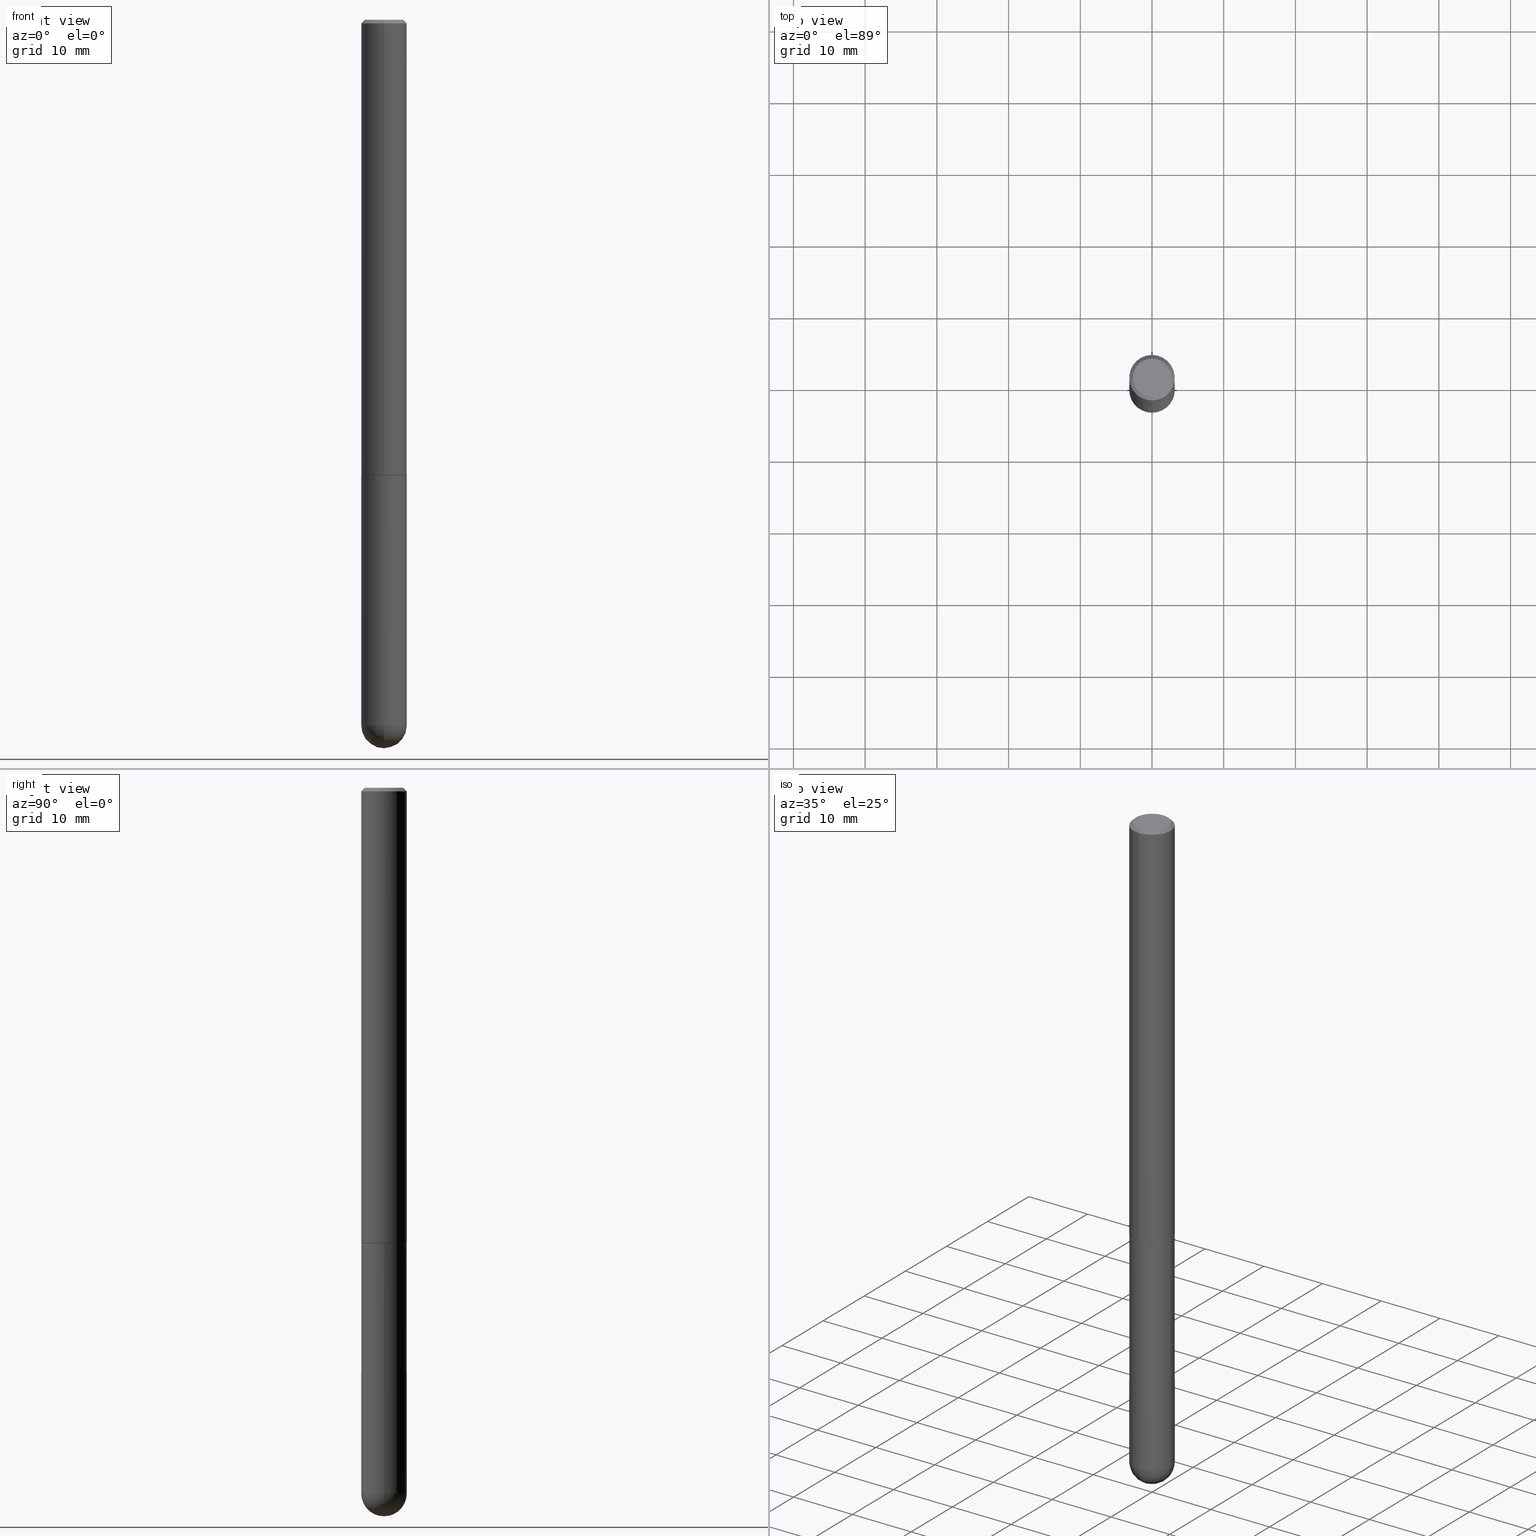
[diagram: canonical four-view strip — front | top / right | iso, engineering-drawing reading convention]
A machine part, canonical four-view strip (front | top / right | iso — engineering-drawing reading convention). The complete STEP part file that produces these views, byte-faithful:
ISO-10303-21;
HEADER;
FILE_DESCRIPTION (( 'STEP AP203' ),
    '1' );
FILE_NAME ('31904.STEP',
    '2024-02-21T17:09:37',
    ( '' ),
    ( '' ),
    'SwSTEP 2.0',
    'SolidWorks 2023',
    '' );
FILE_SCHEMA (( 'CONFIG_CONTROL_DESIGN' ));
ENDSEC;

DATA;
#1 = CARTESIAN_POINT ( 'NONE',  ( 0.1250000000000000000, -9.601573681818648281E-15, -2.500000000000000000 ) ) ;
#2 = DIRECTION ( 'NONE',  ( -4.851104656540958753E-15, -0.7071067811865492381, -0.7071067811865457964 ) ) ;
#3 = CARTESIAN_POINT ( 'NONE',  ( -8.575622497214408537E-16, -0.1250000000000000555, -0.01999999999999959102 ) ) ;
#4 = DATE_TIME_ROLE ( 'creation_date' ) ;
#5 = CIRCLE ( 'NONE', #82, 0.1250000000000003053 ) ;
#6 = CARTESIAN_POINT ( 'NONE',  ( 6.113672015462842613E-29, -8.728703347107864943E-15, -2.500000000000000000 ) ) ;
#7 = LINE ( 'NONE', #224, #335 ) ;
#8 = ORIENTED_EDGE ( 'NONE', *, *, #366, .T. ) ;
#9 = DIRECTION ( 'NONE',  ( 6.982962677686265133E-15, 1.000000000000000000, 0.000000000000000000 ) ) ;
#10 = ORIENTED_EDGE ( 'NONE', *, *, #15, .T. ) ;
#11 = AXIS2_PLACEMENT_3D ( 'NONE', #142, #336, #276 ) ;
#12 = ORIENTED_EDGE ( 'NONE', *, *, #228, .F. ) ;
#13 = DIRECTION ( 'NONE',  ( -2.445468806185136877E-29, 3.491481338843145188E-15, 1.000000000000000000 ) ) ;
#14 = CARTESIAN_POINT ( 'NONE',  ( 9.145071846053518065E-29, -1.400367255615723938E-14, -3.875000000000000000 ) ) ;
#15 = EDGE_CURVE ( 'NONE', #21, #387, #320, .T. ) ;
#16 = PLANE ( 'NONE',  #349 ) ;
#17 = PRODUCT_RELATED_PRODUCT_CATEGORY ( 'detail', '', ( #241 ) ) ;
#18 = DIRECTION ( 'NONE',  ( -1.000000000000000000, 7.105427357601001070E-15, -4.926315508542082329E-29 ) ) ;
#19 = CC_DESIGN_SECURITY_CLASSIFICATION ( #39, ( #290 ) ) ;
#20 = CARTESIAN_POINT ( 'NONE',  ( -0.1250000000000000000, -1.024091834786240099E-14, -2.500000000000000000 ) ) ;
#21 = VERTEX_POINT ( 'NONE', #289 ) ;
#22 = DIRECTION ( 'NONE',  ( -6.982962677686265922E-15, -1.000000000000000000, 4.370956789862810105E-15 ) ) ;
#23 = ORIENTED_EDGE ( 'NONE', *, *, #24, .F. ) ;
#24 = EDGE_CURVE ( 'NONE', #402, #109, #137, .T. ) ;
#25 = CLOSED_SHELL ( 'NONE', ( #155, #96, #293, #33, #127 ) ) ;
#26 = LOCAL_TIME ( 12, 9, 37.00000000000000000, #115 ) ;
#27 = LINE ( 'NONE', #180, #210 ) ;
#28 = PERSON_AND_ORGANIZATION ( #133, #341 ) ;
#29 = CYLINDRICAL_SURFACE ( 'NONE', #279, 0.1250000000000001388 ) ;
#30 = CC_DESIGN_APPROVAL ( #120, ( #52 ) ) ;
#31 = SECURITY_CLASSIFICATION_LEVEL ( 'unclassified' ) ;
#32 = FACE_OUTER_BOUND ( 'NONE', #274, .T. ) ;
#33 = ADVANCED_FACE ( 'NONE', ( #160 ), #393, .F. ) ;
#34 = PERSON_AND_ORGANIZATION ( #133, #341 ) ;
#35 = CARTESIAN_POINT ( 'NONE',  ( 0.000000000000000000, 0.000000000000000000, 0.000000000000000000 ) ) ;
#36 = PERSON_AND_ORGANIZATION ( #133, #341 ) ;
#37 = ORIENTED_EDGE ( 'NONE', *, *, #214, .T. ) ;
#38 = PERSON_AND_ORGANIZATION ( #133, #341 ) ;
#39 = SECURITY_CLASSIFICATION ( '', '', #31 ) ;
#40 = DIRECTION ( 'NONE',  ( -6.982962677686265922E-15, -1.000000000000000000, 3.483106191921935554E-15 ) ) ;
#41 = ORIENTED_EDGE ( 'NONE', *, *, #317, .F. ) ;
#42 = EDGE_CURVE ( 'NONE', #176, #79, #332, .T. ) ;
#43 = VERTEX_POINT ( 'NONE', #159 ) ;
#44 = DIRECTION ( 'NONE',  ( 1.000000000000000000, -6.982962677686265922E-15, 4.883557194083112340E-29 ) ) ;
#45 = ORIENTED_EDGE ( 'NONE', *, *, #170, .F. ) ;
#46 = CIRCLE ( 'NONE', #348, 0.1250000000000000000 ) ;
#47 = AXIS2_PLACEMENT_3D ( 'NONE', #247, #368, #209 ) ;
#48 = ORIENTED_EDGE ( 'NONE', *, *, #234, .F. ) ;
#49 = FACE_OUTER_BOUND ( 'NONE', #389, .T. ) ;
#50 = APPLICATION_PROTOCOL_DEFINITION ( 'international standard', 'config_control_design', 1994, #141 ) ;
#51 = CARTESIAN_POINT ( 'NONE',  ( 0.1250000000000000000, -1.200196710227331272E-14, -3.875000000000000000 ) ) ;
#52 = PRODUCT_DEFINITION ( 'UNKNOWN', '', #290, #249 ) ;
#53 = CARTESIAN_POINT ( 'NONE',  ( 0.000000000000000000, 0.000000000000000000, 0.000000000000000000 ) ) ;
#54 = VECTOR ( 'NONE', #201, 39.37007874015748143 ) ;
#55 = APPROVAL_PERSON_ORGANIZATION ( #268, #120, #182 ) ;
#56 = DIRECTION ( 'NONE',  ( 1.000000000000000000, -6.982962677686266711E-15, 4.876176775795935793E-29 ) ) ;
#57 = FACE_OUTER_BOUND ( 'NONE', #267, .T. ) ;
#58 =( GEOMETRIC_REPRESENTATION_CONTEXT ( 3 ) GLOBAL_UNCERTAINTY_ASSIGNED_CONTEXT ( ( #262 ) ) GLOBAL_UNIT_ASSIGNED_CONTEXT ( ( #272, #398, #70 ) ) REPRESENTATION_CONTEXT ( 'NONE', 'WORKASPACE' ) );
#59 = EDGE_CURVE ( 'NONE', #406, #43, #188, .T. ) ;
#60 = LINE ( 'NONE', #152, #63 ) ;
#61 = COORDINATED_UNIVERSAL_TIME_OFFSET ( 5, 0, .BEHIND. ) ;
#62 = CARTESIAN_POINT ( 'NONE',  ( 8.881784197001575756E-16, 0.1249999999999915762, -2.499000000000000998 ) ) ;
#63 = VECTOR ( 'NONE', #319, 39.37007874015748143 ) ;
#64 = CARTESIAN_POINT ( 'NONE',  ( 0.000000000000000000, 0.000000000000000000, 0.000000000000000000 ) ) ;
#65 = ORIENTED_EDGE ( 'NONE', *, *, #409, .T. ) ;
#66 = VECTOR ( 'NONE', #237, 39.37007874015748143 ) ;
#67 = CIRCLE ( 'NONE', #197, 0.1239999999999999991 ) ;
#68 = EDGE_LOOP ( 'NONE', ( #37, #243, #232, #194 ) ) ;
#69 = CC_DESIGN_DATE_AND_TIME_ASSIGNMENT ( #324, #4, ( #52 ) ) ;
#70 =( NAMED_UNIT ( * ) SI_UNIT ( $, .STERADIAN. ) SOLID_ANGLE_UNIT ( ) );
#71 = DIRECTION ( 'NONE',  ( -2.445638845695268633E-29, 3.491237832586588433E-15, 1.000000000000000000 ) ) ;
#72 = EDGE_LOOP ( 'NONE', ( #391, #303, #23, #372, #178 ) ) ;
#73 = EDGE_LOOP ( 'NONE', ( #356, #102, #240, #12 ) ) ;
#74 = CIRCLE ( 'NONE', #213, 0.1250000000000000000 ) ;
#75 = DIRECTION ( 'NONE',  ( -2.445468806185136597E-29, 3.491481338843145583E-15, 1.000000000000000000 ) ) ;
#76 = ORIENTED_EDGE ( 'NONE', *, *, #311, .T. ) ;
#77 = ADVANCED_BREP_SHAPE_REPRESENTATION ( '31904', ( #385, #379, #412 ), #58 ) ;
#78 = CYLINDRICAL_SURFACE ( 'NONE', #190, 0.1250000000000000000 ) ;
#79 = VERTEX_POINT ( 'NONE', #161 ) ;
#80 = ADVANCED_FACE ( 'NONE', ( #296 ), #221, .T. ) ;
#81 = FACE_OUTER_BOUND ( 'NONE', #72, .T. ) ;
#82 = AXIS2_PLACEMENT_3D ( 'NONE', #343, #136, #22 ) ;
#83 = DIRECTION ( 'NONE',  ( -7.105427357601000281E-15, -1.000000000000000000, 0.000000000000000000 ) ) ;
#84 = ORIENTED_EDGE ( 'NONE', *, *, #366, .F. ) ;
#85 = DIRECTION ( 'NONE',  ( 2.445638845695268633E-29, -3.491237832586588433E-15, -1.000000000000000000 ) ) ;
#86 = EDGE_CURVE ( 'NONE', #387, #21, #46, .T. ) ;
#87 = APPROVAL ( #125, 'UNSPECIFIED' ) ;
#88 = APPROVAL_PERSON_ORGANIZATION ( #34, #87, #223 ) ;
#89 = LINE ( 'NONE', #350, #321 ) ;
#90 = DIRECTION ( 'NONE',  ( -6.982962677686265922E-15, -1.000000000000000000, 3.491237832586588039E-15 ) ) ;
#91 = EDGE_CURVE ( 'NONE', #211, #402, #292, .T. ) ;
#92 = CARTESIAN_POINT ( 'NONE',  ( 9.476191623967404313E-29, -1.352949018801718908E-14, -3.875000000000000000 ) ) ;
#93 = CIRCLE ( 'NONE', #377, 0.1049999999999997047 ) ;
#94 = PERSON_AND_ORGANIZATION_ROLE ( 'design_supplier' ) ;
#95 = DIRECTION ( 'NONE',  ( 6.982962677686265922E-15, 1.000000000000000000, -4.370956789862814839E-15 ) ) ;
#96 = ADVANCED_FACE ( 'NONE', ( #132 ), #124, .T. ) ;
#97 = EDGE_LOOP ( 'NONE', ( #269, #8, #135, #359 ) ) ;
#98 = APPLICATION_CONTEXT ( 'configuration controlled 3d designs of mechanical parts and assemblies' ) ;
#99 = DIRECTION ( 'NONE',  ( 1.000000000000000000, -6.982962677686270655E-15, 0.000000000000000000 ) ) ;
#100 = ORIENTED_EDGE ( 'NONE', *, *, #354, .F. ) ;
#101 = CARTESIAN_POINT ( 'NONE',  ( 4.891277691390543641E-31, -6.982475665173184114E-17, -0.02000000000000002470 ) ) ;
#102 = ORIENTED_EDGE ( 'NONE', *, *, #170, .T. ) ;
#103 = DIRECTION ( 'NONE',  ( -2.445468806185136597E-29, 3.491481338843145583E-15, 1.000000000000000000 ) ) ;
#104 = EDGE_CURVE ( 'NONE', #344, #21, #7, .T. ) ;
#105 = AXIS2_PLACEMENT_3D ( 'NONE', #302, #297, #266 ) ;
#106 = LOCAL_TIME ( 12, 9, 37.00000000000000000, #121 ) ;
#107 = DIRECTION ( 'NONE',  ( -2.445638845695268633E-29, 3.491237832586588433E-15, 1.000000000000000000 ) ) ;
#108 = CYLINDRICAL_SURFACE ( 'NONE', #308, 0.1250000000000000000 ) ;
#109 = VERTEX_POINT ( 'NONE', #20 ) ;
#110 = DIRECTION ( 'NONE',  ( -6.982962677686265922E-15, -1.000000000000000000, 4.370956789862810105E-15 ) ) ;
#111 = CARTESIAN_POINT ( 'NONE',  ( 9.476191623967404313E-29, -1.352949018801718908E-14, -3.875000000000000000 ) ) ;
#112 = ADVANCED_FACE ( 'NONE', ( #403 ), #235, .T. ) ;
#113 = COORDINATED_UNIVERSAL_TIME_OFFSET ( 5, 0, .BEHIND. ) ;
#114 = DIRECTION ( 'NONE',  ( -6.982962677686266711E-15, -1.000000000000000000, 3.491237832586588827E-15 ) ) ;
#115 = COORDINATED_UNIVERSAL_TIME_OFFSET ( 5, 0, .BEHIND. ) ;
#116 = DIRECTION ( 'NONE',  ( -2.445638845695268633E-29, 3.491237832586588433E-15, 1.000000000000000000 ) ) ;
#117 = ADVANCED_FACE ( 'NONE', ( #57 ), #196, .T. ) ;
#118 = APPROVAL_DATE_TIME ( #151, #87 ) ;
#119 = DIRECTION ( 'NONE',  ( 6.982962677686265922E-15, 1.000000000000000000, -4.370956789862814839E-15 ) ) ;
#120 = APPROVAL ( #396, 'UNSPECIFIED' ) ;
#121 = COORDINATED_UNIVERSAL_TIME_OFFSET ( 5, 0, .BEHIND. ) ;
#122 = AXIS2_PLACEMENT_3D ( 'NONE', #405, #373, #110 ) ;
#123 = APPROVAL_ROLE ( '' ) ;
#124 = SPHERICAL_SURFACE ( 'NONE', #357, 0.1250000000000001943 ) ;
#125 = APPROVAL_STATUS ( 'not_yet_approved' ) ;
#126 = CARTESIAN_POINT ( 'NONE',  ( 8.728703347108443769E-16, 0.1249999999999912709, -2.500000000000000444 ) ) ;
#127 = ADVANCED_FACE ( 'NONE', ( #365 ), #108, .T. ) ;
#128 = AXIS2_PLACEMENT_3D ( 'NONE', #6, #103, #99 ) ;
#129 = VECTOR ( 'NONE', #2, 39.37007874015748143 ) ;
#130 = EDGE_CURVE ( 'NONE', #166, #109, #339, .T. ) ;
#131 = PERSON_AND_ORGANIZATION_ROLE ( 'design_owner' ) ;
#132 = FACE_OUTER_BOUND ( 'NONE', #199, .T. ) ;
#133 = PERSON ( 'UNSPECIFIED', 'UNSPECIFIED', 'UNSPECIFIED', ('UNSPECIFIED'), ('UNSPECIFIED'), ('UNSPECIFIED') ) ;
#134 = DIRECTION ( 'NONE',  ( 2.445638845695268633E-29, -3.491237832586588039E-15, -1.000000000000000000 ) ) ;
#135 = ORIENTED_EDGE ( 'NONE', *, *, #86, .T. ) ;
#136 = DIRECTION ( 'NONE',  ( -2.445638845695268633E-29, 3.491237832586588433E-15, 1.000000000000000000 ) ) ;
#137 = CIRCLE ( 'NONE', #128, 0.1250000000000000000 ) ;
#138 = CC_DESIGN_APPROVAL ( #87, ( #39 ) ) ;
#139 = EDGE_CURVE ( 'NONE', #211, #43, #253, .T. ) ;
#140 = CARTESIAN_POINT ( 'NONE',  ( 9.476191623967404313E-29, -1.352949018801718908E-14, -3.875000000000000000 ) ) ;
#141 = APPLICATION_CONTEXT ( 'configuration controlled 3d designs of mechanical parts and assemblies' ) ;
#142 = CARTESIAN_POINT ( 'NONE',  ( 6.114097114238172983E-29, -8.728094581466472068E-15, -2.500000000000000000 ) ) ;
#143 = DIRECTION ( 'NONE',  ( -2.445638845695268633E-29, 3.491237832586588433E-15, 1.000000000000000000 ) ) ;
#144 = ORIENTED_EDGE ( 'NONE', *, *, #392, .T. ) ;
#145 = DIRECTION ( 'NONE',  ( 6.982962677686265922E-15, 1.000000000000000000, -3.491237832586588039E-15 ) ) ;
#146 = CARTESIAN_POINT ( 'NONE',  ( -0.1250000000000000000, -1.024091834786240415E-14, -3.875000000000000000 ) ) ;
#147 = ORIENTED_EDGE ( 'NONE', *, *, #15, .F. ) ;
#148 = APPROVAL_STATUS ( 'not_yet_approved' ) ;
#149 = EDGE_CURVE ( 'NONE', #406, #298, #390, .T. ) ;
#150 = DIRECTION ( 'NONE',  ( 1.000000000000000000, -6.982962677686262766E-15, 0.000000000000000000 ) ) ;
#151 = DATE_AND_TIME ( #186, #331 ) ;
#152 = CARTESIAN_POINT ( 'NONE',  ( 8.810729923425852623E-16, 0.1239999999999912700, -2.500000000000000444 ) ) ;
#153 = DIRECTION ( 'NONE',  ( -2.445638845695268633E-29, 3.491237832586588039E-15, 1.000000000000000000 ) ) ;
#154 = CALENDAR_DATE ( 2024, 21, 2 ) ;
#155 = ADVANCED_FACE ( 'NONE', ( #81 ), #78, .T. ) ;
#156 = EDGE_LOOP ( 'NONE', ( #208, #45 ) ) ;
#157 = CC_DESIGN_APPROVAL ( #187, ( #290 ) ) ;
#158 = PERSON_AND_ORGANIZATION_ROLE ( 'classification_officer' ) ;
#159 = CARTESIAN_POINT ( 'NONE',  ( 8.728703347108770161E-16, 0.1249999999999863443, -3.875000000000000444 ) ) ;
#160 = FACE_OUTER_BOUND ( 'NONE', #394, .T. ) ;
#161 = CARTESIAN_POINT ( 'NONE',  ( -8.728703347107242729E-16, -0.1250000000000090206, -2.498999999999999666 ) ) ;
#162 = ORIENTED_EDGE ( 'NONE', *, *, #24, .T. ) ;
#163 = AXIS2_PLACEMENT_3D ( 'NONE', #287, #185, #150 ) ;
#164 = DIRECTION ( 'NONE',  ( 0.000000000000000000, 0.000000000000000000, 1.000000000000000000 ) ) ;
#165 = CARTESIAN_POINT ( 'NONE',  ( 4.891277691390543641E-31, -6.982475665173184114E-17, -0.02000000000000002470 ) ) ;
#166 = VERTEX_POINT ( 'NONE', #146 ) ;
#167 = FACE_OUTER_BOUND ( 'NONE', #314, .T. ) ;
#168 = CARTESIAN_POINT ( 'NONE',  ( -8.658873720330357934E-16, -0.1240000000000087144, -2.499999999999999556 ) ) ;
#169 = VERTEX_POINT ( 'NONE', #177 ) ;
#170 = EDGE_CURVE ( 'NONE', #169, #176, #67, .T. ) ;
#171 = MECHANICAL_CONTEXT ( 'NONE', #98, 'mechanical' ) ;
#172 = CARTESIAN_POINT ( 'NONE',  ( 6.114097114238172983E-29, -8.728094581466472068E-15, -2.500000000000000000 ) ) ;
#173 = ORIENTED_EDGE ( 'NONE', *, *, #193, .F. ) ;
#174 = DIRECTION ( 'NONE',  ( -2.445638845695268633E-29, 3.491237832586588433E-15, 1.000000000000000000 ) ) ;
#175 = CIRCLE ( 'NONE', #11, 0.1239999999999999991 ) ;
#176 = VERTEX_POINT ( 'NONE', #168 ) ;
#177 = CARTESIAN_POINT ( 'NONE',  ( 8.846257060213868511E-16, 0.1239999999999912700, -2.500000000000000444 ) ) ;
#178 = ORIENTED_EDGE ( 'NONE', *, *, #139, .T. ) ;
#179 = CARTESIAN_POINT ( 'NONE',  ( 4.891277691390543641E-31, -6.982475665173184114E-17, -0.02000000000000002470 ) ) ;
#180 = CARTESIAN_POINT ( 'NONE',  ( -8.728703347107843249E-16, -0.1250000000000001388, 4.364047290733240965E-16 ) ) ;
#181 = ORIENTED_EDGE ( 'NONE', *, *, #234, .T. ) ;
#182 = APPROVAL_ROLE ( '' ) ;
#183 = CIRCLE ( 'NONE', #265, 0.1250000000000000000 ) ;
#184 = CARTESIAN_POINT ( 'NONE',  ( -8.881784197000325412E-16, -0.1250000000000138500, -3.874999999999999556 ) ) ;
#185 = DIRECTION ( 'NONE',  ( -2.445468806185136597E-29, 3.491481338843145583E-15, 1.000000000000000000 ) ) ;
#186 = CALENDAR_DATE ( 2024, 21, 2 ) ;
#187 = APPROVAL ( #148, 'UNSPECIFIED' ) ;
#188 = CIRCLE ( 'NONE', #399, 0.1250000000000001943 ) ;
#189 = DIRECTION ( 'NONE',  ( -2.445638845695268633E-29, 3.491237832586588433E-15, 1.000000000000000000 ) ) ;
#190 = AXIS2_PLACEMENT_3D ( 'NONE', #273, #315, #56 ) ;
#191 = COORDINATED_UNIVERSAL_TIME_OFFSET ( 5, 0, .BEHIND. ) ;
#192 = CYLINDRICAL_SURFACE ( 'NONE', #309, 0.1250000000000001388 ) ;
#193 = EDGE_CURVE ( 'NONE', #166, #298, #183, .T. ) ;
#194 = ORIENTED_EDGE ( 'NONE', *, *, #409, .F. ) ;
#195 = ORIENTED_EDGE ( 'NONE', *, *, #59, .T. ) ;
#196 = CONICAL_SURFACE ( 'NONE', #252, 0.1250000000000000000, 0.7853981633974472798 ) ;
#197 = AXIS2_PLACEMENT_3D ( 'NONE', #172, #174, #212 ) ;
#198 = DIRECTION ( 'NONE',  ( -1.000000000000000000, 6.982962677686265922E-15, -4.876176775795935793E-29 ) ) ;
#199 = EDGE_LOOP ( 'NONE', ( #280, #388, #173, #397 ) ) ;
#200 = APPLICATION_PROTOCOL_DEFINITION ( 'international standard', 'config_control_design', 1994, #98 ) ;
#201 = DIRECTION ( 'NONE',  ( -4.937700262165812586E-15, -0.7071067811867262076, 0.7071067811863689379 ) ) ;
#202 = CARTESIAN_POINT ( 'NONE',  ( 0.1250000000000000000, -8.728703347107833388E-16, 6.095220969744919741E-30 ) ) ;
#203 = AXIS2_PLACEMENT_3D ( 'NONE', #218, #254, #378 ) ;
#204 = ADVANCED_FACE ( 'NONE', ( #338 ), #310, .F. ) ;
#205 = DIRECTION ( 'NONE',  ( -2.445468806185136597E-29, 3.491481338843145583E-15, 1.000000000000000000 ) ) ;
#206 = CARTESIAN_POINT ( 'NONE',  ( 0.000000000000000000, 0.000000000000000000, 0.000000000000000000 ) ) ;
#207 = CARTESIAN_POINT ( 'NONE',  ( 6.114097114238172983E-29, -8.728094581466472068E-15, -2.500000000000000000 ) ) ;
#208 = ORIENTED_EDGE ( 'NONE', *, *, #220, .F. ) ;
#209 = DIRECTION ( 'NONE',  ( -6.982962677686265922E-15, -1.000000000000000000, 3.491237832586588039E-15 ) ) ;
#210 = VECTOR ( 'NONE', #316, 39.37007874015748143 ) ;
#211 = VERTEX_POINT ( 'NONE', #51 ) ;
#212 = DIRECTION ( 'NONE',  ( -6.982962677686265922E-15, -1.000000000000000000, 4.406206441393973340E-15 ) ) ;
#213 = AXIS2_PLACEMENT_3D ( 'NONE', #92, #410, #256 ) ;
#214 = EDGE_CURVE ( 'NONE', #79, #306, #5, .T. ) ;
#215 = DIRECTION ( 'NONE',  ( -6.982962677686265922E-15, -1.000000000000000000, 3.491237832586588039E-15 ) ) ;
#216 = CARTESIAN_POINT ( 'NONE',  ( -8.575622497214408537E-16, -0.1250000000000000555, -0.01999999999999959102 ) ) ;
#217 = CALENDAR_DATE ( 2024, 21, 2 ) ;
#218 = CARTESIAN_POINT ( 'NONE',  ( 6.114097114238172983E-29, -8.728094581466472068E-15, -2.500000000000000000 ) ) ;
#219 = ORIENTED_EDGE ( 'NONE', *, *, #228, .T. ) ;
#220 = EDGE_CURVE ( 'NONE', #176, #169, #175, .T. ) ;
#221 = CONICAL_SURFACE ( 'NONE', #105, 0.1250000000000000000, 0.7853981633974472798 ) ;
#222 = CARTESIAN_POINT ( 'NONE',  ( 8.030407079339197448E-16, 0.1049999999999997047, -5.073561631109876242E-17 ) ) ;
#223 = APPROVAL_ROLE ( '' ) ;
#224 = CARTESIAN_POINT ( 'NONE',  ( 8.728703347107837333E-16, 0.1249999999999999306, -0.02000000000000046185 ) ) ;
#225 = CC_DESIGN_PERSON_AND_ORGANIZATION_ASSIGNMENT ( #328, #383, ( #290 ) ) ;
#226 = ORIENTED_EDGE ( 'NONE', *, *, #214, .F. ) ;
#227 = CONICAL_SURFACE ( 'NONE', #203, 0.1239999999999999991, 0.7853981633977044075 ) ;
#228 = EDGE_CURVE ( 'NONE', #306, #79, #259, .T. ) ;
#229 = ORIENTED_EDGE ( 'NONE', *, *, #139, .F. ) ;
#230 = ORIENTED_EDGE ( 'NONE', *, *, #104, .T. ) ;
#231 = DIRECTION ( 'NONE',  ( -2.445638845695268633E-29, 3.491237832586588433E-15, 1.000000000000000000 ) ) ;
#232 = ORIENTED_EDGE ( 'NONE', *, *, #86, .F. ) ;
#233 = CARTESIAN_POINT ( 'NONE',  ( 9.145071846053518065E-29, -1.400367255615723938E-14, -3.875000000000000000 ) ) ;
#234 = EDGE_CURVE ( 'NONE', #109, #402, #299, .T. ) ;
#235 = CONICAL_SURFACE ( 'NONE', #376, 0.1239999999999999991, 0.7853981633977044075 ) ;
#236 = AXIS2_PLACEMENT_3D ( 'NONE', #352, #116, #90 ) ;
#237 = DIRECTION ( 'NONE',  ( -2.445468806185136877E-29, 3.491481338843145188E-15, 1.000000000000000000 ) ) ;
#238 = CC_DESIGN_PERSON_AND_ORGANIZATION_ASSIGNMENT ( #337, #131, ( #241 ) ) ;
#239 = CARTESIAN_POINT ( 'NONE',  ( -0.1250000000000000000, 8.881784197001252323E-16, -6.148668862818632227E-30 ) ) ;
#240 = ORIENTED_EDGE ( 'NONE', *, *, #42, .T. ) ;
#241 = PRODUCT ( '31904', '31904', '', ( #171 ) ) ;
#242 = DIRECTION ( 'NONE',  ( -2.445468806185136597E-29, 3.491481338843145583E-15, 1.000000000000000000 ) ) ;
#243 = ORIENTED_EDGE ( 'NONE', *, *, #300, .T. ) ;
#244 = CARTESIAN_POINT ( 'NONE',  ( 6.113672015462842613E-29, -8.728703347107864943E-15, -2.500000000000000000 ) ) ;
#245 = CIRCLE ( 'NONE', #163, 0.1250000000000000000 ) ;
#246 = CC_DESIGN_DATE_AND_TIME_ASSIGNMENT ( #260, #283, ( #39 ) ) ;
#247 = CARTESIAN_POINT ( 'NONE',  ( 6.114097114238172983E-29, -8.728094581466472068E-15, -2.500000000000000000 ) ) ;
#248 = ORIENTED_EDGE ( 'NONE', *, *, #149, .F. ) ;
#249 = DESIGN_CONTEXT ( 'detailed design', #141, 'design' ) ;
#250 = EDGE_LOOP ( 'NONE', ( #374, #330, #264, #340, #48 ) ) ;
#251 = CALENDAR_DATE ( 2024, 21, 2 ) ;
#252 = AXIS2_PLACEMENT_3D ( 'NONE', #179, #85, #307 ) ;
#253 = CIRCLE ( 'NONE', #370, 0.1250000000000000000 ) ;
#254 = DIRECTION ( 'NONE',  ( -2.445638845695268633E-29, 3.491237832586588433E-15, 1.000000000000000000 ) ) ;
#255 = DIRECTION ( 'NONE',  ( -6.982962677686266711E-15, -1.000000000000000000, 3.491237832586588827E-15 ) ) ;
#256 = DIRECTION ( 'NONE',  ( 1.000000000000000000, -6.982962677686262766E-15, 0.000000000000000000 ) ) ;
#257 = APPROVAL_DATE_TIME ( #353, #187 ) ;
#258 = ADVANCED_FACE ( 'NONE', ( #49 ), #16, .F. ) ;
#259 = CIRCLE ( 'NONE', #122, 0.1250000000000003053 ) ;
#260 = DATE_AND_TIME ( #154, #271 ) ;
#261 = CARTESIAN_POINT ( 'NONE',  ( 9.145071846053518065E-29, -1.400367255615723938E-14, -3.875000000000000000 ) ) ;
#262 = UNCERTAINTY_MEASURE_WITH_UNIT (LENGTH_MEASURE( 1.000000000000000082E-05 ), #272, 'distance_accuracy_value', 'NONE');
#263 = CARTESIAN_POINT ( 'NONE',  ( -8.658873720330357934E-16, -0.1240000000000087144, -2.499999999999999556 ) ) ;
#264 = ORIENTED_EDGE ( 'NONE', *, *, #317, .T. ) ;
#265 = AXIS2_PLACEMENT_3D ( 'NONE', #140, #205, #275 ) ;
#266 = DIRECTION ( 'NONE',  ( 6.982962677686265922E-15, 1.000000000000000000, -3.483106191921935554E-15 ) ) ;
#267 = EDGE_LOOP ( 'NONE', ( #84, #100, #230, #10 ) ) ;
#268 = PERSON_AND_ORGANIZATION ( #133, #341 ) ;
#269 = ORIENTED_EDGE ( 'NONE', *, *, #392, .F. ) ;
#270 = DIRECTION ( 'NONE',  ( -1.000000000000000000, 6.982962677686265922E-15, -4.883557194083112901E-29 ) ) ;
#271 = LOCAL_TIME ( 12, 9, 37.00000000000000000, #191 ) ;
#272 =( CONVERSION_BASED_UNIT ( 'INCH', #295 ) LENGTH_UNIT ( ) NAMED_UNIT ( #345 ) );
#273 = CARTESIAN_POINT ( 'NONE',  ( 0.000000000000000000, 0.000000000000000000, 0.000000000000000000 ) ) ;
#274 = EDGE_LOOP ( 'NONE', ( #312, #219, #65, #147 ) ) ;
#275 = DIRECTION ( 'NONE',  ( 1.000000000000000000, -6.982962677686262766E-15, 0.000000000000000000 ) ) ;
#276 = DIRECTION ( 'NONE',  ( -6.982962677686265922E-15, -1.000000000000000000, 4.406206441393973340E-15 ) ) ;
#277 = VECTOR ( 'NONE', #13, 39.37007874015748143 ) ;
#278 = DIRECTION ( 'NONE',  ( 1.000000000000000000, -6.982962677686270655E-15, 0.000000000000000000 ) ) ;
#279 = AXIS2_PLACEMENT_3D ( 'NONE', #64, #189, #255 ) ;
#280 = ORIENTED_EDGE ( 'NONE', *, *, #59, .F. ) ;
#281 =( LENGTH_UNIT ( ) NAMED_UNIT ( * ) SI_UNIT ( $, .METRE. ) );
#282 = DIRECTION ( 'NONE',  ( -2.445638845695268633E-29, 3.491237832586588433E-15, 1.000000000000000000 ) ) ;
#283 = DATE_TIME_ROLE ( 'classification_date' ) ;
#284 = LOCAL_TIME ( 12, 9, 37.00000000000000000, #113 ) ;
#285 = CARTESIAN_POINT ( 'NONE',  ( -7.724412264974290657E-45, 1.102687765261900439E-30, 3.158443561104919460E-16 ) ) ;
#286 = DATE_AND_TIME ( #251, #284 ) ;
#287 = CARTESIAN_POINT ( 'NONE',  ( 9.476191623967404313E-29, -1.352949018801718908E-14, -3.875000000000000000 ) ) ;
#288 = PERSON_AND_ORGANIZATION ( #133, #341 ) ;
#289 = CARTESIAN_POINT ( 'NONE',  ( 8.728703347107837333E-16, 0.1249999999999999306, -0.02000000000000046185 ) ) ;
#290 = PRODUCT_DEFINITION_FORMATION_WITH_SPECIFIED_SOURCE ( 'ANY', '', #241, .NOT_KNOWN. ) ;
#291 = SHAPE_DEFINITION_REPRESENTATION ( #327, #77 ) ;
#292 = LINE ( 'NONE', #202, #277 ) ;
#293 = ADVANCED_FACE ( 'NONE', ( #167 ), #304, .T. ) ;
#294 = ORIENTED_EDGE ( 'NONE', *, *, #42, .F. ) ;
#295 = LENGTH_MEASURE_WITH_UNIT ( LENGTH_MEASURE( 0.02539999999999999897 ), #281 );
#296 = FACE_OUTER_BOUND ( 'NONE', #97, .T. ) ;
#297 = DIRECTION ( 'NONE',  ( 2.445638845695268633E-29, -3.491237832586588433E-15, -1.000000000000000000 ) ) ;
#298 = VERTEX_POINT ( 'NONE', #184 ) ;
#299 = CIRCLE ( 'NONE', #358, 0.1250000000000000000 ) ;
#300 = EDGE_CURVE ( 'NONE', #306, #21, #89, .T. ) ;
#301 = DIRECTION ( 'NONE',  ( 1.000000000000000000, 0.000000000000000000, 0.000000000000000000 ) ) ;
#302 = CARTESIAN_POINT ( 'NONE',  ( 4.891277691390543641E-31, -6.982475665173184114E-17, -0.02000000000000002470 ) ) ;
#303 = ORIENTED_EDGE ( 'NONE', *, *, #130, .T. ) ;
#304 = SPHERICAL_SURFACE ( 'NONE', #400, 0.1250000000000001943 ) ;
#305 = CARTESIAN_POINT ( 'NONE',  ( 7.332110811570558550E-16, 0.1049999999999997047, -2.086577943663447909E-16 ) ) ;
#306 = VERTEX_POINT ( 'NONE', #62 ) ;
#307 = DIRECTION ( 'NONE',  ( 6.982962677686265922E-15, 1.000000000000000000, -3.483106191921935554E-15 ) ) ;
#308 = AXIS2_PLACEMENT_3D ( 'NONE', #53, #75, #367 ) ;
#309 = AXIS2_PLACEMENT_3D ( 'NONE', #35, #282, #114 ) ;
#310 = PLANE ( 'NONE',  #47 ) ;
#311 = EDGE_CURVE ( 'NONE', #169, #306, #60, .T. ) ;
#312 = ORIENTED_EDGE ( 'NONE', *, *, #300, .F. ) ;
#313 = CARTESIAN_POINT ( 'NONE',  ( 9.145071846053518065E-29, -1.400367255615723938E-14, -3.875000000000000000 ) ) ;
#314 = EDGE_LOOP ( 'NONE', ( #248, #195, #229, #41 ) ) ;
#315 = DIRECTION ( 'NONE',  ( -2.445468806185136597E-29, 3.491481338843145583E-15, 1.000000000000000000 ) ) ;
#316 = DIRECTION ( 'NONE',  ( -2.445638845695268633E-29, 3.491237832586588039E-15, 1.000000000000000000 ) ) ;
#317 = EDGE_CURVE ( 'NONE', #298, #211, #74, .T. ) ;
#318 = AXIS2_PLACEMENT_3D ( 'NONE', #313, #18, #83 ) ;
#319 = DIRECTION ( 'NONE',  ( 5.024295867789349022E-15, 0.7071067811867310926, 0.7071067811863640529 ) ) ;
#320 = CIRCLE ( 'NONE', #411, 0.1250000000000000000 ) ;
#321 = VECTOR ( 'NONE', #153, 39.37007874015748143 ) ;
#322 = ADVANCED_FACE ( 'NONE', ( #382 ), #227, .T. ) ;
#323 = LINE ( 'NONE', #216, #129 ) ;
#324 = DATE_AND_TIME ( #217, #26 ) ;
#325 = FACE_OUTER_BOUND ( 'NONE', #68, .T. ) ;
#326 = PERSON_AND_ORGANIZATION_ROLE ( 'creator' ) ;
#327 = PRODUCT_DEFINITION_SHAPE ( 'NONE', 'NONE',  #52 ) ;
#328 = PERSON_AND_ORGANIZATION ( #133, #341 ) ;
#329 = DIRECTION ( 'NONE',  ( 2.438088387897960049E-29, -3.491481338843145188E-15, -1.000000000000000000 ) ) ;
#330 = ORIENTED_EDGE ( 'NONE', *, *, #193, .T. ) ;
#331 = LOCAL_TIME ( 12, 9, 37.00000000000000000, #61 ) ;
#332 = LINE ( 'NONE', #263, #54 ) ;
#333 = ORIENTED_EDGE ( 'NONE', *, *, #354, .T. ) ;
#334 = EDGE_LOOP ( 'NONE', ( #404, #76, #226, #294 ) ) ;
#335 = VECTOR ( 'NONE', #371, 39.37007874015748143 ) ;
#336 = DIRECTION ( 'NONE',  ( -2.445638845695268633E-29, 3.491237832586588433E-15, 1.000000000000000000 ) ) ;
#337 = PERSON_AND_ORGANIZATION ( #133, #341 ) ;
#338 = FACE_OUTER_BOUND ( 'NONE', #156, .T. ) ;
#339 = LINE ( 'NONE', #239, #66 ) ;
#340 = ORIENTED_EDGE ( 'NONE', *, *, #91, .T. ) ;
#341 = ORGANIZATION ( 'UNSPECIFIED', 'UNSPECIFIED', '' ) ;
#342 = CC_DESIGN_PERSON_AND_ORGANIZATION_ASSIGNMENT ( #38, #94, ( #290 ) ) ;
#343 = CARTESIAN_POINT ( 'NONE',  ( 6.111651475392477882E-29, -8.724603343633885394E-15, -2.499000000000000110 ) ) ;
#344 = VERTEX_POINT ( 'NONE', #222 ) ;
#345 = DIMENSIONAL_EXPONENTS ( 1.000000000000000000, 0.000000000000000000, 0.000000000000000000, 0.000000000000000000, 0.000000000000000000, 0.000000000000000000, 0.000000000000000000 ) ;
#346 = DIRECTION ( 'NONE',  ( -2.445468806185136597E-29, 3.491481338843145583E-15, 1.000000000000000000 ) ) ;
#347 = CARTESIAN_POINT ( 'NONE',  ( 9.456100236134031739E-29, -1.443245368101796326E-14, -4.000000000000000888 ) ) ;
#348 = AXIS2_PLACEMENT_3D ( 'NONE', #101, #231, #361 ) ;
#349 = AXIS2_PLACEMENT_3D ( 'NONE', #305, #134, #145 ) ;
#350 = CARTESIAN_POINT ( 'NONE',  ( 8.881784197001262184E-16, 0.1250000000000001388, -4.364047290733240965E-16 ) ) ;
#351 = CALENDAR_DATE ( 2024, 21, 2 ) ;
#352 = CARTESIAN_POINT ( 'NONE',  ( -7.724412264974290657E-45, 1.102687765261900439E-30, 3.158443561104919460E-16 ) ) ;
#353 = DATE_AND_TIME ( #351, #106 ) ;
#354 = EDGE_CURVE ( 'NONE', #344, #360, #407, .T. ) ;
#355 = APPROVAL_DATE_TIME ( #286, #120 ) ;
#356 = ORIENTED_EDGE ( 'NONE', *, *, #311, .F. ) ;
#357 = AXIS2_PLACEMENT_3D ( 'NONE', #261, #386, #95 ) ;
#358 = AXIS2_PLACEMENT_3D ( 'NONE', #244, #346, #278 ) ;
#359 = ORIENTED_EDGE ( 'NONE', *, *, #104, .F. ) ;
#360 = VERTEX_POINT ( 'NONE', #381 ) ;
#361 = DIRECTION ( 'NONE',  ( -6.982962677686265922E-15, -1.000000000000000000, 3.483106191921935554E-15 ) ) ;
#362 = ADVANCED_FACE ( 'NONE', ( #32 ), #29, .T. ) ;
#363 = CLOSED_SHELL ( 'NONE', ( #112, #380, #80, #117, #362, #322, #204, #258 ) ) ;
#364 = APPROVAL_PERSON_ORGANIZATION ( #28, #187, #123 ) ;
#365 = FACE_OUTER_BOUND ( 'NONE', #250, .T. ) ;
#366 = EDGE_CURVE ( 'NONE', #360, #387, #323, .T. ) ;
#367 = DIRECTION ( 'NONE',  ( 1.000000000000000000, -6.982962677686266711E-15, 4.876176775795935793E-29 ) ) ;
#368 = DIRECTION ( 'NONE',  ( -2.445638845695268633E-29, 3.491237832586588039E-15, 1.000000000000000000 ) ) ;
#369 = AXIS2_PLACEMENT_3D ( 'NONE', #126, #329, #198 ) ;
#370 = AXIS2_PLACEMENT_3D ( 'NONE', #111, #242, #401 ) ;
#371 = DIRECTION ( 'NONE',  ( 4.937700262164542520E-15, 0.7071067811865443531, -0.7071067811865506814 ) ) ;
#372 = ORIENTED_EDGE ( 'NONE', *, *, #91, .F. ) ;
#373 = DIRECTION ( 'NONE',  ( -2.445638845695268633E-29, 3.491237832586588433E-15, 1.000000000000000000 ) ) ;
#374 = ORIENTED_EDGE ( 'NONE', *, *, #130, .F. ) ;
#375 = CC_DESIGN_PERSON_AND_ORGANIZATION_ASSIGNMENT ( #288, #326, ( #52 ) ) ;
#376 = AXIS2_PLACEMENT_3D ( 'NONE', #207, #107, #408 ) ;
#377 = AXIS2_PLACEMENT_3D ( 'NONE', #285, #143, #215 ) ;
#378 = DIRECTION ( 'NONE',  ( -6.982962677686265922E-15, -1.000000000000000000, 4.406206441393973340E-15 ) ) ;
#379 = MANIFOLD_SOLID_BREP ( 'Body-Move/Copy2[2]', #363 ) ;
#380 = ADVANCED_FACE ( 'NONE', ( #325 ), #192, .T. ) ;
#381 = CARTESIAN_POINT ( 'NONE',  ( -7.889572697437248320E-16, -0.1049999999999997047, 6.824243285320826606E-16 ) ) ;
#382 = FACE_OUTER_BOUND ( 'NONE', #73, .T. ) ;
#383 = PERSON_AND_ORGANIZATION_ROLE ( 'creator' ) ;
#384 = EDGE_CURVE ( 'NONE', #43, #166, #245, .T. ) ;
#385 = MANIFOLD_SOLID_BREP ( 'Body-Move/Copy2[1]', #25 ) ;
#386 = DIRECTION ( 'NONE',  ( -1.000000000000000000, 6.982962677686265922E-15, -4.883557194083112901E-29 ) ) ;
#387 = VERTEX_POINT ( 'NONE', #3 ) ;
#388 = ORIENTED_EDGE ( 'NONE', *, *, #149, .T. ) ;
#389 = EDGE_LOOP ( 'NONE', ( #333, #144 ) ) ;
#390 = CIRCLE ( 'NONE', #318, 0.1250000000000001943 ) ;
#391 = ORIENTED_EDGE ( 'NONE', *, *, #384, .T. ) ;
#392 = EDGE_CURVE ( 'NONE', #360, #344, #93, .T. ) ;
#393 = PLANE ( 'NONE',  #369 ) ;
#394 = EDGE_LOOP ( 'NONE', ( #162, #181 ) ) ;
#395 = CC_DESIGN_PERSON_AND_ORGANIZATION_ASSIGNMENT ( #36, #158, ( #39 ) ) ;
#396 = APPROVAL_STATUS ( 'not_yet_approved' ) ;
#397 = ORIENTED_EDGE ( 'NONE', *, *, #384, .F. ) ;
#398 =( NAMED_UNIT ( * ) PLANE_ANGLE_UNIT ( ) SI_UNIT ( $, .RADIAN. ) );
#399 = AXIS2_PLACEMENT_3D ( 'NONE', #233, #44, #9 ) ;
#400 = AXIS2_PLACEMENT_3D ( 'NONE', #14, #270, #119 ) ;
#401 = DIRECTION ( 'NONE',  ( 1.000000000000000000, -6.982962677686262766E-15, 0.000000000000000000 ) ) ;
#402 = VERTEX_POINT ( 'NONE', #1 ) ;
#403 = FACE_OUTER_BOUND ( 'NONE', #334, .T. ) ;
#404 = ORIENTED_EDGE ( 'NONE', *, *, #220, .T. ) ;
#405 = CARTESIAN_POINT ( 'NONE',  ( 6.111651475392477882E-29, -8.724603343633885394E-15, -2.499000000000000110 ) ) ;
#406 = VERTEX_POINT ( 'NONE', #347 ) ;
#407 = CIRCLE ( 'NONE', #236, 0.1049999999999997047 ) ;
#408 = DIRECTION ( 'NONE',  ( -6.982962677686265922E-15, -1.000000000000000000, 4.406206441393973340E-15 ) ) ;
#409 = EDGE_CURVE ( 'NONE', #79, #387, #27, .T. ) ;
#410 = DIRECTION ( 'NONE',  ( -2.445468806185136597E-29, 3.491481338843145583E-15, 1.000000000000000000 ) ) ;
#411 = AXIS2_PLACEMENT_3D ( 'NONE', #165, #71, #40 ) ;
#412 = AXIS2_PLACEMENT_3D ( 'NONE', #206, #164, #301 ) ;
ENDSEC;
END-ISO-10303-21;
